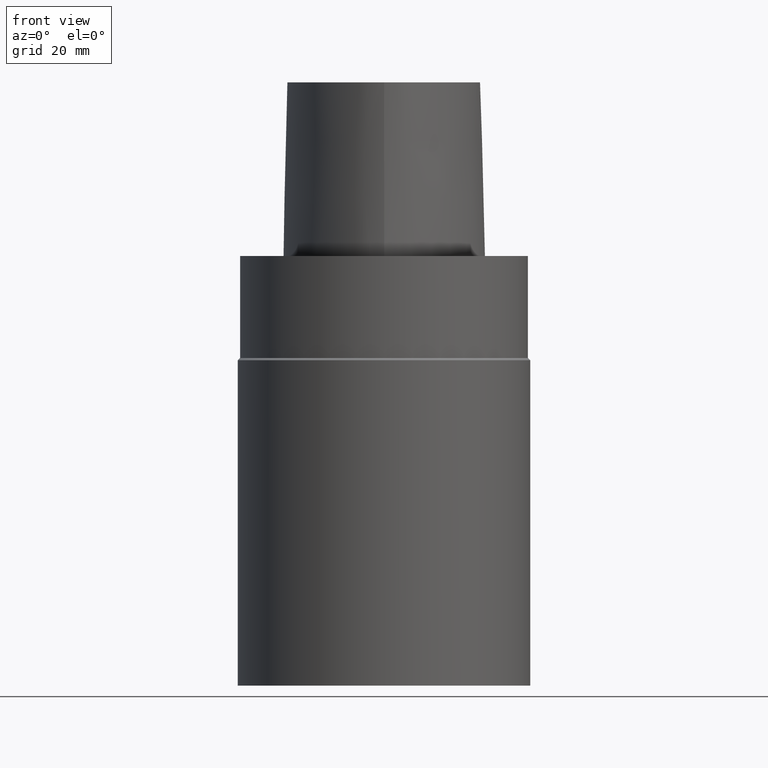
[diagram: clean part render]
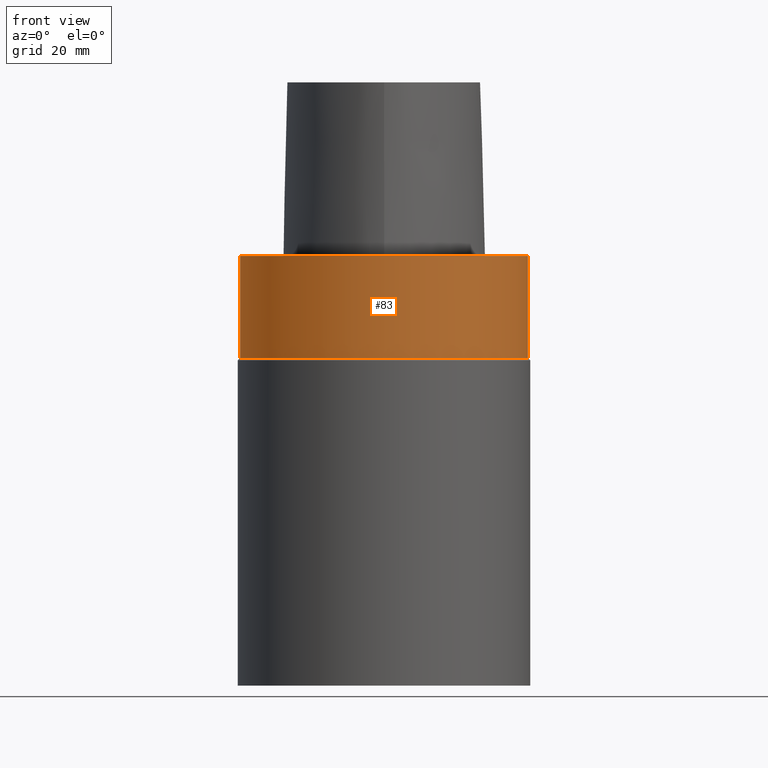
[diagram: same view with one face highlighted and labeled with its STEP entity id]
A machine part, front view. The second image highlights one B-rep face of the part: STEP entity #83.
In plain terms, the highlighted cylindrical surface (bore or boss wall) has radius 31.4925 mm, axis along (-0, -0, 1).
Its self-contained STEP definition (entity closure, byte-faithful):
#83=ADVANCED_FACE('',(#104,#105),#106,.T.);
#104=FACE_BOUND('',#264,.T.);
#105=FACE_BOUND('',#265,.T.);
#106=CYLINDRICAL_SURFACE('',#266,31.4925);
#264=EDGE_LOOP('',(#307));
#265=EDGE_LOOP('',(#308));
#266=AXIS2_PLACEMENT_3D('',#309,#310,#311);
#307=ORIENTED_EDGE('',*,*,#321,.F.);
#308=ORIENTED_EDGE('',*,*,#323,.T.);
#309=CARTESIAN_POINT('',(6.82740590524649E-016,1.3654811810493E-015,-11.15));
#310=DIRECTION('',(-6.12323399573677E-017,-1.22464679914735E-016,1.0));
#311=DIRECTION('',(-1.23259516440783E-032,1.0,1.22464679914735E-016));
#321=EDGE_CURVE('',#339,#339,#340,.T.);
#323=EDGE_CURVE('',#343,#343,#344,.T.);
#339=VERTEX_POINT('',#426);
#340=CIRCLE('',#427,31.4925);
#343=VERTEX_POINT('',#430);
#344=CIRCLE('',#431,31.4925);
#426=CARTESIAN_POINT('',(1.3654811810493E-015,31.4925,-22.3));
#427=AXIS2_PLACEMENT_3D('',#441,#442,#443);
#430=CARTESIAN_POINT('',(-3.88175032151136E-031,31.4925,3.8567189322148E-015));
#431=AXIS2_PLACEMENT_3D('',#447,#448,#449);
#441=CARTESIAN_POINT('',(1.3654811810493E-015,2.7309623620986E-015,-22.3));
#442=DIRECTION('',(6.12323399573677E-017,1.22464679914735E-016,-1.0));
#443=DIRECTION('',(-1.23259516440783E-032,1.0,1.22464679914735E-016));
#447=CARTESIAN_POINT('',(0.0,0.0,0.0));
#448=DIRECTION('',(6.12323399573677E-017,1.22464679914735E-016,-1.0));
#449=DIRECTION('',(-1.23259516440783E-032,1.0,1.22464679914735E-016));